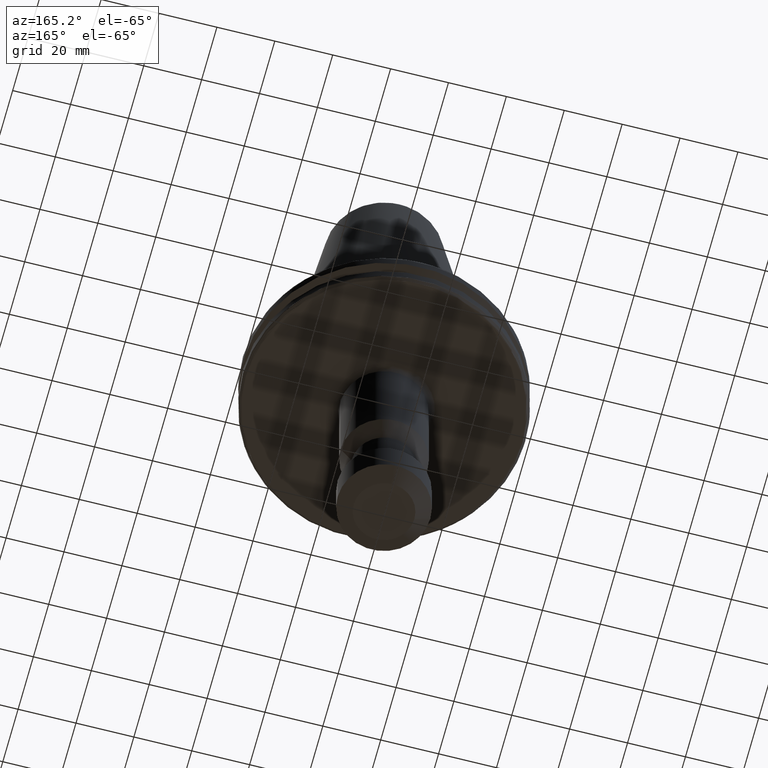
[diagram: clean part render]
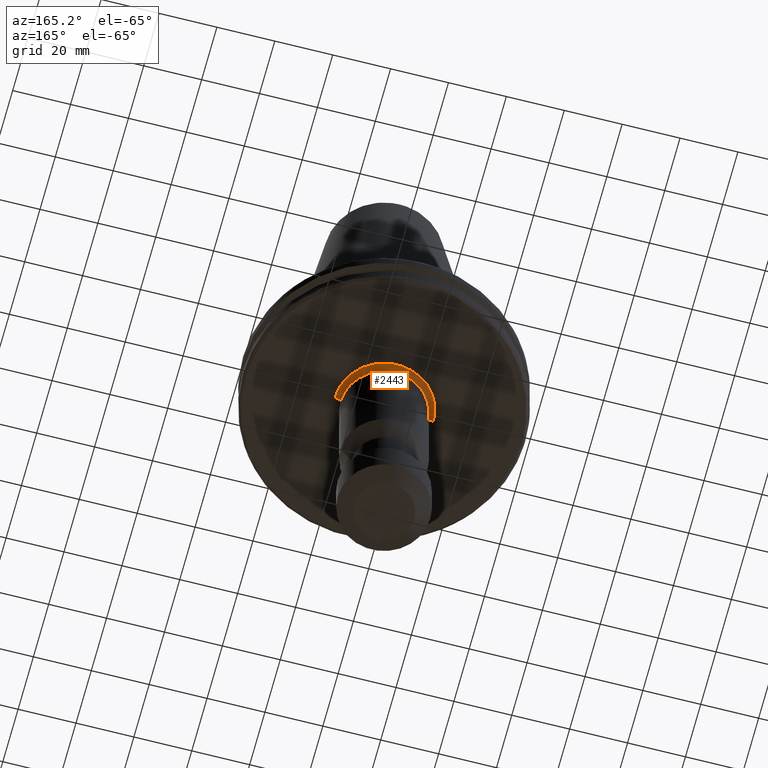
[diagram: same view with one face highlighted and labeled with its STEP entity id]
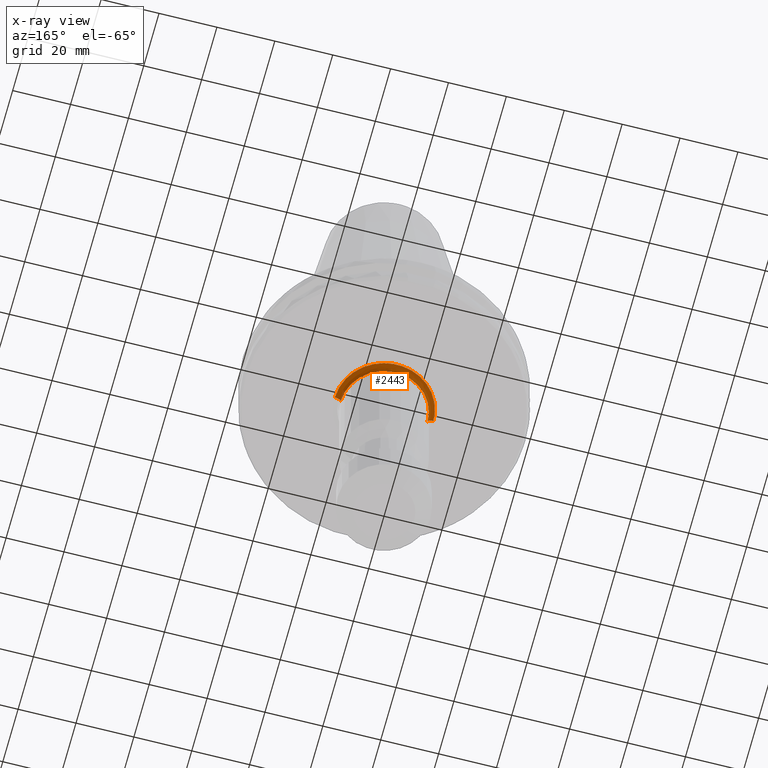
[diagram: x-ray of the same camera — body ghosted, the highlighted face saturated]
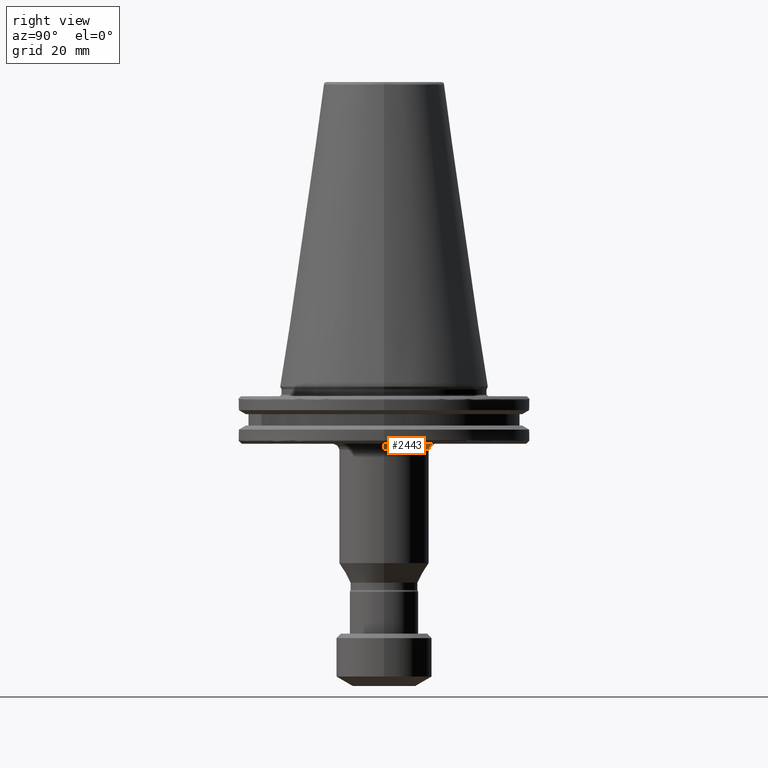
[diagram: same view with one face highlighted and labeled with its STEP entity id]
A machine part, auxiliary view. The second image highlights one B-rep face of the part: STEP entity #2443.
The next image is the same camera in x-ray: the body ghosted, the highlighted face saturated — about 0% of this face is hidden behind the body in this view.
A second angle (right view) of the same face is appended — the face is thin or edge-on in the first view.
In plain terms, the highlighted face is a freeform B-spline surface patch.
Its self-contained STEP definition (entity closure, byte-faithful):
#42 = ORIENTED_EDGE ( 'NONE', *, *, #1217, .F. ) ;
#133 = CARTESIAN_POINT ( 'NONE',  ( -9.182110065269718300, 14.30713178097664700, -19.10000000000001200 ) ) ;
#138 = CARTESIAN_POINT ( 'NONE',  ( -16.99999999999998900, 0.0000000000000000000, -21.10000000000000900 ) ) ;
#139 = CARTESIAN_POINT ( 'NONE',  ( -15.41372478594541600, 7.180910359805224600, -19.10000000000000900 ) ) ;
#147 = CARTESIAN_POINT ( 'NONE',  ( -16.71027858106262800, 3.125317723918708400, -19.10000000000000100 ) ) ;
#168 = CARTESIAN_POINT ( 'NONE',  ( 15.97840023185761600, 5.807325023635518900, -19.10000000000000900 ) ) ;
#177 = CARTESIAN_POINT ( 'NONE',  ( 12.85040064147194400, 11.19117736271898000, -19.10000000000000900 ) ) ;
#187 = CARTESIAN_POINT ( 'NONE',  ( 6.390923916823732400, 15.75301338873084200, -19.10000000000000500 ) ) ;
#201 = CARTESIAN_POINT ( 'NONE',  ( -0.5197252359296659100, 17.00001621349948900, -19.10000000000000500 ) ) ;
#213 = CARTESIAN_POINT ( 'NONE',  ( -6.129270536058141900, 15.85664712819512600, -19.10000000000000500 ) ) ;
#220 = EDGE_CURVE ( 'NONE', #2285, #1025, #3036, .T. ) ;
#284 = CARTESIAN_POINT ( 'NONE',  ( -15.82842712474617700, 31.65685424949235500, -19.10000000000000100 ) ) ;
#300 = DIRECTION ( 'NONE',  ( 1.224646799147353200E-016, -1.000000000000000000, 0.0000000000000000000 ) ) ;
#307 = DIRECTION ( 'NONE',  ( 0.0000000000000000000, 0.0000000000000000000, -1.000000000000000000 ) ) ;
#357 = DIRECTION ( 'NONE',  ( 0.0000000000000000000, 1.000000000000000000, 0.0000000000000000000 ) ) ;
#391 = CARTESIAN_POINT ( 'NONE',  ( -10.28458922963836600, 13.58694172186861400, -19.10000000000000500 ) ) ;
#401 = CARTESIAN_POINT ( 'NONE',  ( -15.71244586321104300, 6.490634399675370100, -19.10000000000000100 ) ) ;
#414 = CARTESIAN_POINT ( 'NONE',  ( -16.99999999999998900, 1.039981274145734200, -19.09999999999999800 ) ) ;
#429 = CARTESIAN_POINT ( 'NONE',  ( 15.85664712819559500, 6.129270536055612300, -19.10000000000000100 ) ) ;
#439 = FACE_OUTER_BOUND ( 'NONE', #489, .T. ) ;
#447 = CARTESIAN_POINT ( 'NONE',  ( 10.95514690495525300, 13.02276200926030600, -19.10000000000000500 ) ) ;
#460 = CARTESIAN_POINT ( 'NONE',  ( 6.289638318446941800, 15.79372029836359200, -19.10000000000000900 ) ) ;
#469 = CARTESIAN_POINT ( 'NONE',  ( -2.196602693796269700, 16.86107325276852700, -19.10000000000000500 ) ) ;
#481 = CARTESIAN_POINT ( 'NONE',  ( -6.224235666763718200, 15.81961256450059500, -19.10000000000000100 ) ) ;
#489 = EDGE_LOOP ( 'NONE', ( #42, #1416, #2340, #3384 ) ) ;
#565 = CARTESIAN_POINT ( 'NONE',  ( 15.82842712474618100, 1.938423261385755100E-015, -19.10000000000000500 ) ) ;
#573 = CARTESIAN_POINT ( 'NONE',  ( -16.99999999999998900, 0.0000000000000000000, -19.10000000000000500 ) ) ;
#607 = CARTESIAN_POINT ( 'NONE',  ( -15.82842712474618100, 0.0000000000000000000, -19.10000000000000500 ) ) ;
#609 =( BOUNDED_SURFACE ( )  B_SPLINE_SURFACE ( 3, 3, ( 
 ( #573, #842, #3217, #1640 ),
 ( #607, #284, #2161, #565 ),
 ( #2433, #831, #2693, #1103 ),
 ( #2943, #1363, #3212, #1633 ) ),
 .UNSPECIFIED., .F., .F., .T. ) 
 B_SPLINE_SURFACE_WITH_KNOTS ( ( 4, 4 ),
 ( 4, 4 ),
 ( 0.0000000000000000000, 1.000000000000000000 ),
 ( 0.0000000000000000000, 1.000000000000000000 ),
 .UNSPECIFIED. ) 
 GEOMETRIC_REPRESENTATION_ITEM ( )  RATIONAL_B_SPLINE_SURFACE ( (
 ( 1.000000000000000000, 0.3333333333333334300, 0.3333333333333334300, 1.000000000000000000),
 ( 0.8047378541243649400, 0.2682459513747884100, 0.2682459513747884100, 0.8047378541243649400),
 ( 0.8047378541243649400, 0.2682459513747884100, 0.2682459513747884100, 0.8047378541243649400),
 ( 1.000000000000000000, 0.3333333333333334300, 0.3333333333333334300, 1.000000000000000000) ) ) 
 REPRESENTATION_ITEM ( '' )  SURFACE ( )  );
#673 = CARTESIAN_POINT ( 'NONE',  ( -12.43563423889748200, 11.60602259952191100, -19.10000000000000100 ) ) ;
#679 = CARTESIAN_POINT ( 'NONE',  ( -15.77985774725970300, 6.324345534787863000, -19.10000000000000100 ) ) ;
#697 = CARTESIAN_POINT ( 'NONE',  ( 16.86105197255043800, 2.196717709406118300, -19.10000000000000500 ) ) ;
#713 = CARTESIAN_POINT ( 'NONE',  ( 15.81961256450035300, 6.224235666763978400, -19.10000000000000100 ) ) ;
#723 = CARTESIAN_POINT ( 'NONE',  ( 9.728261501595108400, 13.94273981248317700, -19.10000000000000100 ) ) ;
#731 = CARTESIAN_POINT ( 'NONE',  ( 4.965289126045984600, 16.27518783772485000, -19.10000000000000500 ) ) ;
#749 = CARTESIAN_POINT ( 'NONE',  ( -2.869521108641413400, 16.75629328809212400, -19.10000000000000500 ) ) ;
#763 = CARTESIAN_POINT ( 'NONE',  ( -7.572712612743692300, 15.23929593934310000, -19.10000000000001200 ) ) ;
#831 = CARTESIAN_POINT ( 'NONE',  ( -14.99999999999999100, 29.99999999999996800, -19.92842712474619700 ) ) ;
#842 = CARTESIAN_POINT ( 'NONE',  ( -16.99999999999998900, 33.99999999999997200, -19.10000000000000900 ) ) ;
#847 = AXIS2_PLACEMENT_3D ( 'NONE', #1901, #300, #2171 ) ;
#857 = VERTEX_POINT ( 'NONE', #1023 ) ;
#948 = CARTESIAN_POINT ( 'NONE',  ( -13.64631823949578200, 10.14559024918019300, -19.10000000000000500 ) ) ;
#952 = EDGE_CURVE ( 'NONE', #1589, #857, #2386, .T. ) ;
#954 = CARTESIAN_POINT ( 'NONE',  ( -16.00929423322481100, 5.745157968230116400, -19.10000000000000900 ) ) ;
#970 = CARTESIAN_POINT ( 'NONE',  ( 16.75628663802398700, 2.869557051019495200, -19.10000000000000500 ) ) ;
#976 = CARTESIAN_POINT ( 'NONE',  ( 15.23929593935007500, 7.572712612736301800, -19.10000000000000900 ) ) ;
#986 = CARTESIAN_POINT ( 'NONE',  ( 9.425089607253593000, 14.14825376423097400, -19.09999999999999800 ) ) ;
#1003 = CARTESIAN_POINT ( 'NONE',  ( 3.566247131323481100, 16.62276056159971200, -19.10000000000000100 ) ) ;
#1004 = CARTESIAN_POINT ( 'NONE',  ( -16.99999999999998900, 0.0000000000000000000, -19.10000000000000500 ) ) ;
#1011 = CARTESIAN_POINT ( 'NONE',  ( -3.029438918683408800, 16.72792623648390300, -19.09999999999999800 ) ) ;
#1019 = CARTESIAN_POINT ( 'NONE',  ( -9.061033282950363700, 14.38413214245038500, -19.09999999999999800 ) ) ;
#1023 = CARTESIAN_POINT ( 'NONE',  ( 14.99999999999999100, 0.0000000000000000000, -21.10000000000000900 ) ) ;
#1025 = VERTEX_POINT ( 'NONE', #3208 ) ;
#1103 = CARTESIAN_POINT ( 'NONE',  ( 14.99999999999999100, 1.836970198721028800E-015, -19.92842712474619700 ) ) ;
#1210 = CARTESIAN_POINT ( 'NONE',  ( -14.06648694187844800, 9.546716948410505700, -19.10000000000000900 ) ) ;
#1217 = EDGE_CURVE ( 'NONE', #1589, #2285, #1407, .T. ) ;
#1221 = CARTESIAN_POINT ( 'NONE',  ( -16.51811642354632800, 4.035858417268812600, -19.10000000000000500 ) ) ;
#1234 = CARTESIAN_POINT ( 'NONE',  ( 16.72792424146346600, 3.029449701396838400, -19.10000000000001200 ) ) ;
#1249 = CARTESIAN_POINT ( 'NONE',  ( 14.49842495587823200, 8.878797069426442000, -19.10000000000000100 ) ) ;
#1260 = CARTESIAN_POINT ( 'NONE',  ( 8.821883244308054400, 14.54320516735693900, -19.10000000000000500 ) ) ;
#1267 = CARTESIAN_POINT ( 'NONE',  ( 3.228799669472806900, 16.69059809660729200, -19.10000000000000500 ) ) ;
#1277 = CARTESIAN_POINT ( 'NONE',  ( -3.635329554514931300, 16.61591811502073700, -19.10000000000000900 ) ) ;
#1363 = CARTESIAN_POINT ( 'NONE',  ( -14.99999999999999100, 29.99999999999997500, -21.10000000000000900 ) ) ;
#1407 = B_SPLINE_CURVE_WITH_KNOTS ( 'NONE', 3,
 ( #1758, #3330, #2309, #697, #2558, #970, #2819, #1234, #3079, #1493, #3339, #1767, #168, #2036, #429, #2313, #713, #2566, #976, #2830, #1249, #3084, #1501, #3355, #1776, #177, #2048, #447, #2321, #723, #2585, #986, #2838, #1260, #3098, #1510, #3362, #1796, #187, #2056, #460, #2335, #731, #2592, #1003, #2850, #1267, #3108, #1527, #3372, #1803, #201, #2065, #469, #2344, #749, #2602, #1011, #2860, #1277, #3113, #1540, #3385, #1812, #213, #2085, #481, #2353, #763, #2617, #2613, #1019, #133, #1999, #391, #2275, #673, #2539, #948, #2793, #1210, #3053, #1463, #3318, #1737, #139, #2011, #401, #2280, #679, #2548, #954, #2798, #1221, #3061, #1471, #3325, #1749, #147, #2017, #414, #2291 ),
 .UNSPECIFIED., .F., .F.,
 ( 4, 1, 1, 1, 1, 2, 2, 1, 1, 1, 1, 2, 2, 1, 1, 1, 2, 2, 2, 1, 1, 1, 2, 2, 1, 1, 1, 1, 2, 2, 1, 1, 1, 1, 2, 2, 2, 1, 1, 1, 1, 2, 2, 1, 1, 1, 1, 2, 2, 1, 1, 1, 2, 2, 2, 1, 1, 1, 2, 2, 1, 1, 1, 1, 2, 2, 1, 1, 1, 1, 2, 2, 4 ),
 ( 0.0000000000000000000, 0.03124999999999921600, 0.04687499999999882000, 0.05468749999999862600, 0.05859374999999851500, 0.06054687499999847300, 0.06249999999999843200, 0.09374999999999740500, 0.1093749999999968800, 0.1171874999999966100, 0.1210937499999964600, 0.1230468749999964200, 0.1249999999999963600, 0.1562499999999952800, 0.1718749999999947800, 0.1796874999999944800, 0.1835937499999943700, 0.1874999999999942800, 0.2499999999999922300, 0.2812499999999912300, 0.2968749999999907300, 0.3046874999999904000, 0.3085937499999903400, 0.3124999999999902300, 0.3437499999999893400, 0.3593749999999889000, 0.3671874999999886800, 0.3710937499999885100, 0.3730468749999885100, 0.3749999999999885600, 0.4062499999999886200, 0.4218749999999887300, 0.4296874999999887900, 0.4335937499999887900, 0.4355468749999887900, 0.4374999999999887900, 0.4999999999999894500, 0.5312499999999897900, 0.5468749999999899000, 0.5546874999999901200, 0.5585937499999901200, 0.5605468749999901200, 0.5624999999999902300, 0.5937499999999911200, 0.6093749999999915600, 0.6171874999999919000, 0.6210937499999920100, 0.6230468749999920100, 0.6249999999999921200, 0.6562499999999927800, 0.6718749999999930100, 0.6796874999999931200, 0.6835937499999933400, 0.6874999999999934500, 0.7499999999999943400, 0.7812499999999948900, 0.7968749999999952300, 0.8046874999999953400, 0.8085937499999954500, 0.8124999999999955600, 0.8437499999999966700, 0.8593749999999972200, 0.8671874999999974500, 0.8710937499999975600, 0.8730468749999976700, 0.8749999999999976700, 0.9062499999999980000, 0.9218749999999982200, 0.9296874999999983300, 0.9335937499999983300, 0.9355468749999984500, 0.9374999999999984500, 1.000000000000000000 ),
 .UNSPECIFIED. ) ;
#1416 = ORIENTED_EDGE ( 'NONE', *, *, #952, .T. ) ;
#1463 = CARTESIAN_POINT ( 'NONE',  ( -14.18963850613696700, 9.362651127952633000, -19.10000000000000900 ) ) ;
#1471 = CARTESIAN_POINT ( 'NONE',  ( -16.67087759191220500, 3.330217505461315200, -19.10000000000000500 ) ) ;
#1493 = CARTESIAN_POINT ( 'NONE',  ( 16.61591811502268400, 3.635329554504416600, -19.10000000000000900 ) ) ;
#1501 = CARTESIAN_POINT ( 'NONE',  ( 14.30713178097761000, 9.182110065268696900, -19.10000000000000100 ) ) ;
#1510 = CARTESIAN_POINT ( 'NONE',  ( 7.180910359808337700, 15.41372478594418300, -19.10000000000000900 ) ) ;
#1527 = CARTESIAN_POINT ( 'NONE',  ( 3.125312245169780100, 16.71027959509473600, -19.10000000000000500 ) ) ;
#1540 = CARTESIAN_POINT ( 'NONE',  ( -5.353849595847092000, 16.13916466441872900, -19.10000000000000100 ) ) ;
#1589 = VERTEX_POINT ( 'NONE', #3426 ) ;
#1633 = CARTESIAN_POINT ( 'NONE',  ( 14.99999999999999100, 1.836970198721028800E-015, -21.10000000000000900 ) ) ;
#1640 = CARTESIAN_POINT ( 'NONE',  ( 16.99999999999998900, 2.081899558550499500E-015, -19.10000000000000500 ) ) ;
#1671 = EDGE_CURVE ( 'NONE', #1025, #857, #2575, .T. ) ;
#1737 = CARTESIAN_POINT ( 'NONE',  ( -14.97610095325651600, 8.080751853749935900, -19.10000000000000900 ) ) ;
#1749 = CARTESIAN_POINT ( 'NONE',  ( -16.70354485979861900, 3.161129493914226300, -19.10000000000000100 ) ) ;
#1758 = CARTESIAN_POINT ( 'NONE',  ( 16.99999999999998900, 2.081899558550499900E-015, -19.10000000000000500 ) ) ;
#1767 = CARTESIAN_POINT ( 'NONE',  ( 16.13916466442129800, 5.353849595833282600, -19.10000000000000900 ) ) ;
#1776 = CARTESIAN_POINT ( 'NONE',  ( 13.58694172185783500, 10.28458922965103800, -19.10000000000001200 ) ) ;
#1796 = CARTESIAN_POINT ( 'NONE',  ( 6.490634399676348000, 15.71244586321066400, -19.10000000000000500 ) ) ;
#1803 = CARTESIAN_POINT ( 'NONE',  ( 1.039450471859331800, 16.99996757300099800, -19.10000000000000500 ) ) ;
#1812 = CARTESIAN_POINT ( 'NONE',  ( -6.032866341708735400, 15.89380501011273800, -19.10000000000000100 ) ) ;
#1818 = AXIS2_PLACEMENT_3D ( 'NONE', #138, #357, #2010 ) ;
#1901 = CARTESIAN_POINT ( 'NONE',  ( 16.99999999999998900, 2.081899558550499500E-015, -21.10000000000000900 ) ) ;
#1907 = CARTESIAN_POINT ( 'NONE',  ( 0.0000000000000000000, 0.0000000000000000000, -21.10000000000000900 ) ) ;
#1999 = CARTESIAN_POINT ( 'NONE',  ( -9.241189343666729200, 14.26904756377009800, -19.10000000000000900 ) ) ;
#2010 = DIRECTION ( 'NONE',  ( -1.000000000000000000, 0.0000000000000000000, 0.0000000000000000000 ) ) ;
#2011 = CARTESIAN_POINT ( 'NONE',  ( -15.61568138957497700, 6.722192561592113900, -19.10000000000000500 ) ) ;
#2017 = CARTESIAN_POINT ( 'NONE',  ( -16.90539708769390600, 2.071105237814586000, -19.10000000000000100 ) ) ;
#2036 = CARTESIAN_POINT ( 'NONE',  ( 15.89380501011353900, 6.032866341704418800, -19.10000000000000500 ) ) ;
#2048 = CARTESIAN_POINT ( 'NONE',  ( 11.60602259952098000, 12.43563423889746400, -19.10000000000000500 ) ) ;
#2056 = CARTESIAN_POINT ( 'NONE',  ( 6.324345534788158800, 15.77985774725960000, -19.10000000000000500 ) ) ;
#2065 = CARTESIAN_POINT ( 'NONE',  ( -1.296190649252728900, 16.96455228150933400, -19.10000000000000900 ) ) ;
#2085 = CARTESIAN_POINT ( 'NONE',  ( -6.193483027727597600, 15.83167458760899700, -19.10000000000000100 ) ) ;
#2161 = CARTESIAN_POINT ( 'NONE',  ( 15.82842712474617700, 31.65685424949235500, -19.10000000000000100 ) ) ;
#2171 = DIRECTION ( 'NONE',  ( 1.000000000000000000, 1.224646799147353500E-016, 0.0000000000000000000 ) ) ;
#2180 = DIRECTION ( 'NONE',  ( -1.000000000000000000, 0.0000000000000000000, 0.0000000000000000000 ) ) ;
#2275 = CARTESIAN_POINT ( 'NONE',  ( -11.19117736271893200, 12.85040064147009900, -19.10000000000000900 ) ) ;
#2280 = CARTESIAN_POINT ( 'NONE',  ( -15.75301338873106800, 6.390923916823159500, -19.10000000000000100 ) ) ;
#2285 = VERTEX_POINT ( 'NONE', #1004 ) ;
#2291 = CARTESIAN_POINT ( 'NONE',  ( -16.99999999999998900, 0.0000000000000000000, -19.10000000000000500 ) ) ;
#2309 = CARTESIAN_POINT ( 'NONE',  ( 16.96452390788522600, 1.296344003399192400, -19.10000000000001600 ) ) ;
#2313 = CARTESIAN_POINT ( 'NONE',  ( 15.83167458760924600, 6.193483027726302700, -19.10000000000000500 ) ) ;
#2321 = CARTESIAN_POINT ( 'NONE',  ( 10.14559024917898500, 13.64631823949575900, -19.10000000000000900 ) ) ;
#2335 = CARTESIAN_POINT ( 'NONE',  ( 5.745157968230313500, 16.00929423322472900, -19.10000000000001200 ) ) ;
#2340 = ORIENTED_EDGE ( 'NONE', *, *, #1671, .F. ) ;
#2344 = CARTESIAN_POINT ( 'NONE',  ( -2.645442648318032200, 16.79380762804338500, -19.10000000000000500 ) ) ;
#2353 = CARTESIAN_POINT ( 'NONE',  ( -6.791600395161787600, 15.59501797503263500, -19.10000000000001200 ) ) ;
#2386 = CIRCLE ( 'NONE', #847, 1.999999999999998200 ) ;
#2433 = CARTESIAN_POINT ( 'NONE',  ( -14.99999999999999100, 0.0000000000000000000, -19.92842712474619700 ) ) ;
#2443 = ADVANCED_FACE ( 'NONE', ( #439 ), #609, .F. ) ;
#2539 = CARTESIAN_POINT ( 'NONE',  ( -13.02276200926033700, 10.95514690495687700, -19.10000000000000100 ) ) ;
#2548 = CARTESIAN_POINT ( 'NONE',  ( -15.79372029836358500, 6.289638318446950600, -19.10000000000000500 ) ) ;
#2558 = CARTESIAN_POINT ( 'NONE',  ( 16.79379521458283600, 2.645509740757113100, -19.10000000000000100 ) ) ;
#2566 = CARTESIAN_POINT ( 'NONE',  ( 15.59501797503661700, 6.791600395157559000, -19.10000000000000500 ) ) ;
#2575 = CIRCLE ( 'NONE', #2870, 14.99999999999999100 ) ;
#2585 = CARTESIAN_POINT ( 'NONE',  ( 9.546716948410082900, 14.06648694187843800, -19.10000000000000500 ) ) ;
#2592 = CARTESIAN_POINT ( 'NONE',  ( 4.035858417269075500, 16.51811642354622800, -19.10000000000000500 ) ) ;
#2602 = CARTESIAN_POINT ( 'NONE',  ( -2.965481552293397300, 16.73938395791544700, -19.10000000000000500 ) ) ;
#2613 = CARTESIAN_POINT ( 'NONE',  ( -8.878797069429676700, 14.49842495587517600, -19.10000000000000900 ) ) ;
#2617 = CARTESIAN_POINT ( 'NONE',  ( -8.449231957589807600, 14.75665408569888700, -19.10000000000000500 ) ) ;
#2693 = CARTESIAN_POINT ( 'NONE',  ( 14.99999999999998400, 29.99999999999997500, -19.92842712474619700 ) ) ;
#2793 = CARTESIAN_POINT ( 'NONE',  ( -13.94273981248318600, 9.728261501595817200, -19.10000000000000900 ) ) ;
#2798 = CARTESIAN_POINT ( 'NONE',  ( -16.27518783772498500, 4.965289126045647100, -19.10000000000000900 ) ) ;
#2819 = CARTESIAN_POINT ( 'NONE',  ( 16.73938006287552900, 2.965502604257703300, -19.10000000000000500 ) ) ;
#2830 = CARTESIAN_POINT ( 'NONE',  ( 14.75665408570411700, 8.449231957584261800, -19.10000000000000500 ) ) ;
#2838 = CARTESIAN_POINT ( 'NONE',  ( 9.362651127952341700, 14.18963850613708100, -19.10000000000000100 ) ) ;
#2850 = CARTESIAN_POINT ( 'NONE',  ( 3.330217505461400900, 16.67087759191216600, -19.10000000000000500 ) ) ;
#2860 = CARTESIAN_POINT ( 'NONE',  ( -3.059499537037179400, 16.72245833483556500, -19.10000000000000100 ) ) ;
#2870 = AXIS2_PLACEMENT_3D ( 'NONE', #1907, #307, #2180 ) ;
#2943 = CARTESIAN_POINT ( 'NONE',  ( -14.99999999999999100, 0.0000000000000000000, -21.10000000000000900 ) ) ;
#3036 = CIRCLE ( 'NONE', #1818, 1.999999999999998200 ) ;
#3053 = CARTESIAN_POINT ( 'NONE',  ( -14.14825376423097900, 9.425089607253815100, -19.10000000000000900 ) ) ;
#3061 = CARTESIAN_POINT ( 'NONE',  ( -16.62276056159977600, 3.566247131323327500, -19.10000000000000500 ) ) ;
#3079 = CARTESIAN_POINT ( 'NONE',  ( 16.72245833483545100, 3.059499537037841900, -19.10000000000000500 ) ) ;
#3084 = CARTESIAN_POINT ( 'NONE',  ( 14.38413214245222900, 9.061033282948416800, -19.10000000000000100 ) ) ;
#3098 = CARTESIAN_POINT ( 'NONE',  ( 8.080751853754083700, 14.97610095325488000, -19.10000000000000900 ) ) ;
#3108 = CARTESIAN_POINT ( 'NONE',  ( 3.161129493914252900, 16.70354485979860500, -19.10000000000000500 ) ) ;
#3113 = CARTESIAN_POINT ( 'NONE',  ( -4.437327573589461100, 16.42698948584742200, -19.10000000000000900 ) ) ;
#3208 = CARTESIAN_POINT ( 'NONE',  ( -14.99999999999999100, 1.836970198721028800E-015, -21.10000000000000900 ) ) ;
#3212 = CARTESIAN_POINT ( 'NONE',  ( 14.99999999999998800, 29.99999999999997500, -21.10000000000000900 ) ) ;
#3217 = CARTESIAN_POINT ( 'NONE',  ( 16.99999999999998600, 33.99999999999997200, -19.10000000000000900 ) ) ;
#3318 = CARTESIAN_POINT ( 'NONE',  ( -14.54320516735787200, 8.821883244305681200, -19.10000000000000500 ) ) ;
#3325 = CARTESIAN_POINT ( 'NONE',  ( -16.69059809660731700, 3.228799669472756800, -19.10000000000000100 ) ) ;
#3330 = CARTESIAN_POINT ( 'NONE',  ( 16.99999999999998900, 0.5198128668705061000, -19.10000000000000500 ) ) ;
#3339 = CARTESIAN_POINT ( 'NONE',  ( 16.42698948585082200, 4.437327573571051800, -19.10000000000000900 ) ) ;
#3355 = CARTESIAN_POINT ( 'NONE',  ( 14.26904756377077100, 9.241189343665940500, -19.10000000000000500 ) ) ;
#3362 = CARTESIAN_POINT ( 'NONE',  ( 6.722192561593935500, 15.61568138957426500, -19.10000000000000900 ) ) ;
#3372 = CARTESIAN_POINT ( 'NONE',  ( 2.071280557780427400, 16.90536463866652600, -19.10000000000000900 ) ) ;
#3384 = ORIENTED_EDGE ( 'NONE', *, *, #220, .F. ) ;
#3385 = CARTESIAN_POINT ( 'NONE',  ( -5.807325023643573800, 15.97840023185611400, -19.10000000000000500 ) ) ;
#3426 = CARTESIAN_POINT ( 'NONE',  ( 16.99999999999998900, 2.081899558550499900E-015, -19.10000000000000500 ) ) ;